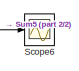
[diagram: root canvas - part 1/2, top center region]
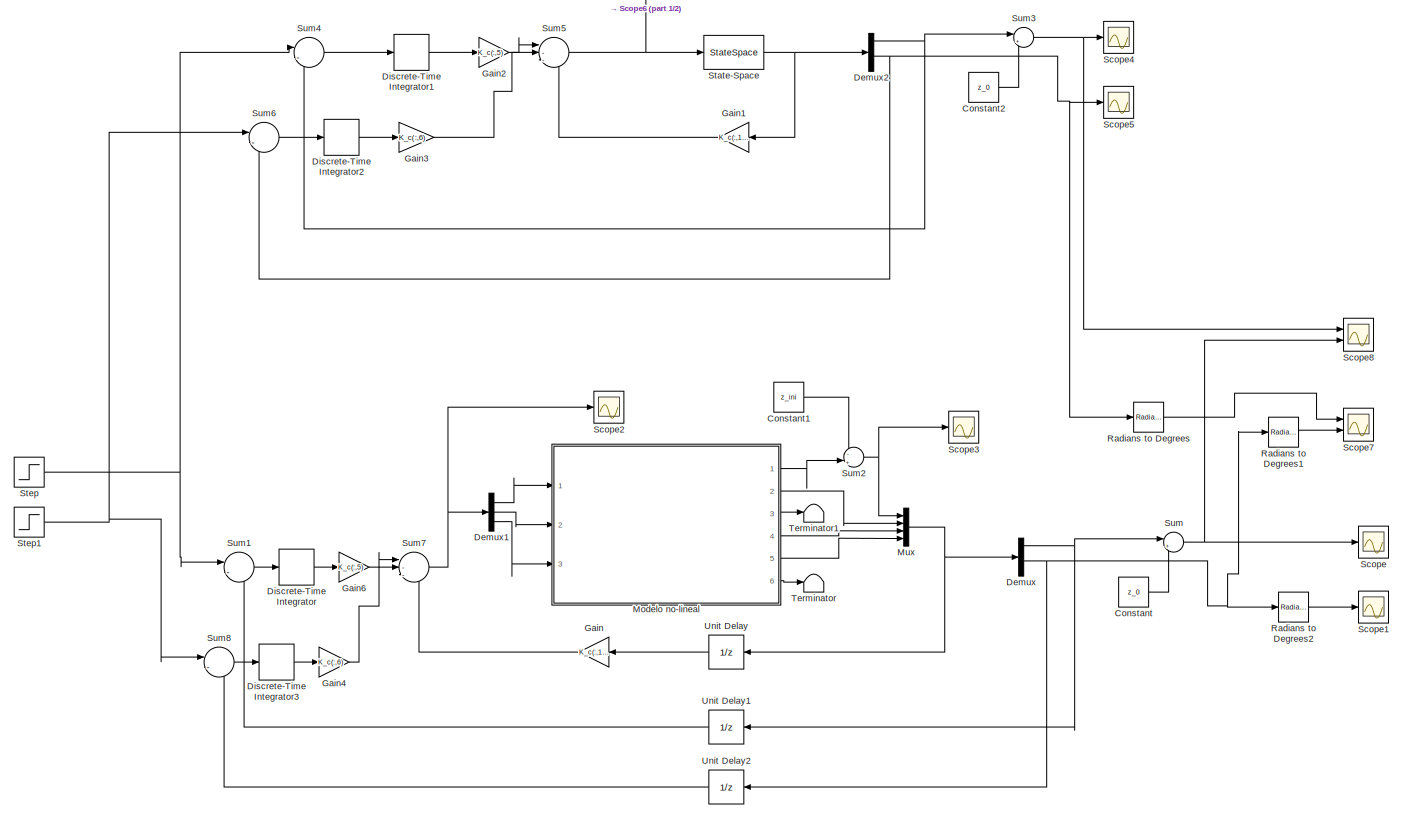
[diagram: root canvas - part 2/2, most of the canvas]
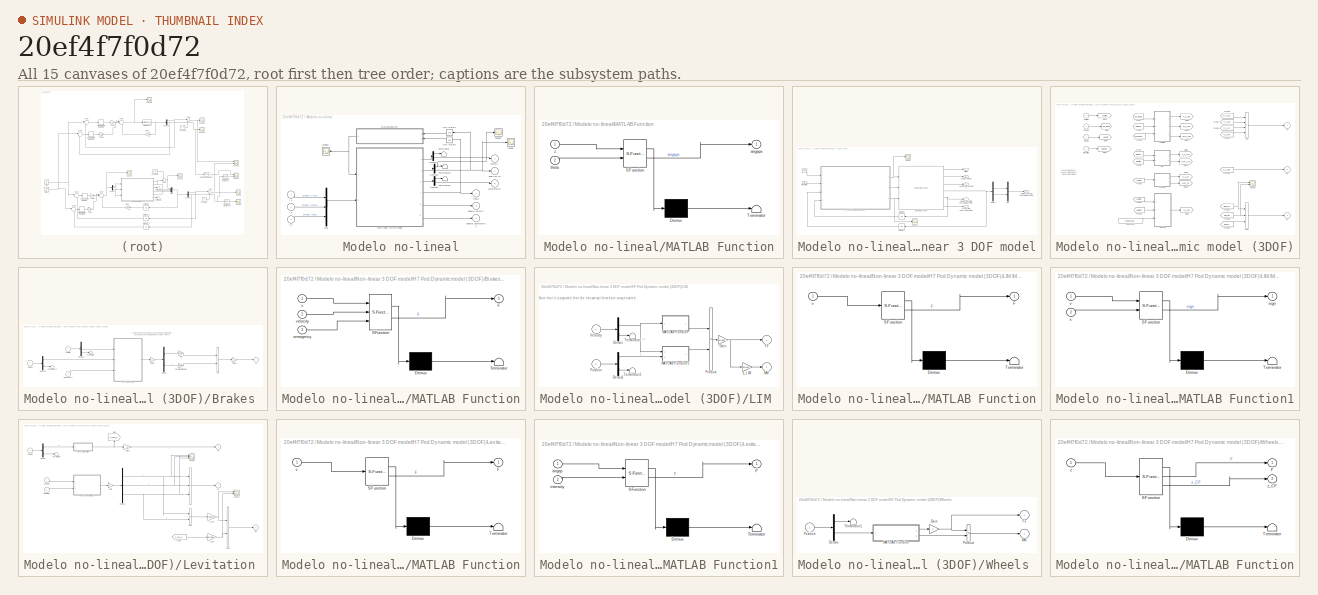
[diagram: thumbnail index - all 15 canvases of the model, root first then tree order]
MODEL slx_20ef4f7f0d72
KIND model
CONFIG AbsTol = auto
CONFIG EnableMultiTasking = off
CONFIG FixedStep = auto
CONFIG MaxStep = 1e-4
CONFIG MinStep = auto
CONFIG RelTol = 1e-9
CONFIG SampleTimeConstraint = Unconstrained
CONFIG Solver = ode45
CONFIG SolverName = ode45
CONFIG StartTime = 0.0
CONFIG StopTime = 10
BLOCK [Constant] Constant
  SampleTime = T
  Value = z_0
BLOCK [Constant] Constant1
  SampleTime = T
  Value = z_ini
BLOCK [Constant] Constant2
  Value = z_0
BLOCK [Demux] Demux
  Ports = [1, 4]
BLOCK [Demux] Demux1
  Outputs = 3
  Ports = [1, 3]
BLOCK [Demux] Demux2
  Ports = [1, 4]
BLOCK [DiscreteIntegrator] Discrete-Time Integrator
  ICPrevOutput = DiscIntNeverNeededParam
  ICPrevScaledInput = DiscIntNeverNeededParam
  InitialConditionSetting = Auto
  Ports = [1, 1]
  SampleTime = -1
BLOCK [DiscreteIntegrator] Discrete-Time Integrator1
  ICPrevOutput = DiscIntNeverNeededParam
  ICPrevScaledInput = DiscIntNeverNeededParam
  InitialConditionSetting = Auto
  Ports = [1, 1]
  SampleTime = -1
BLOCK [DiscreteIntegrator] Discrete-Time Integrator2
  ICPrevOutput = DiscIntNeverNeededParam
  ICPrevScaledInput = DiscIntNeverNeededParam
  InitialConditionSetting = Auto
  Ports = [1, 1]
  SampleTime = -1
BLOCK [DiscreteIntegrator] Discrete-Time Integrator3
  ICPrevOutput = DiscIntNeverNeededParam
  ICPrevScaledInput = DiscIntNeverNeededParam
  InitialConditionSetting = Auto
  Ports = [1, 1]
  SampleTime = -1
BLOCK [Gain] Gain
  Gain = K_c(:,1:4)
  Multiplication = Matrix(K*u)
BLOCK [Gain] Gain1
  Gain = K_c(:,1:4)
  Multiplication = Matrix(K*u)
BLOCK [Gain] Gain2
  Gain = K_c(:,5)
BLOCK [Gain] Gain3
  Gain = K_c(:,6)
BLOCK [Gain] Gain4
  Gain = K_c(:,6)
BLOCK [Gain] Gain6
  Gain = K_c(:,5)
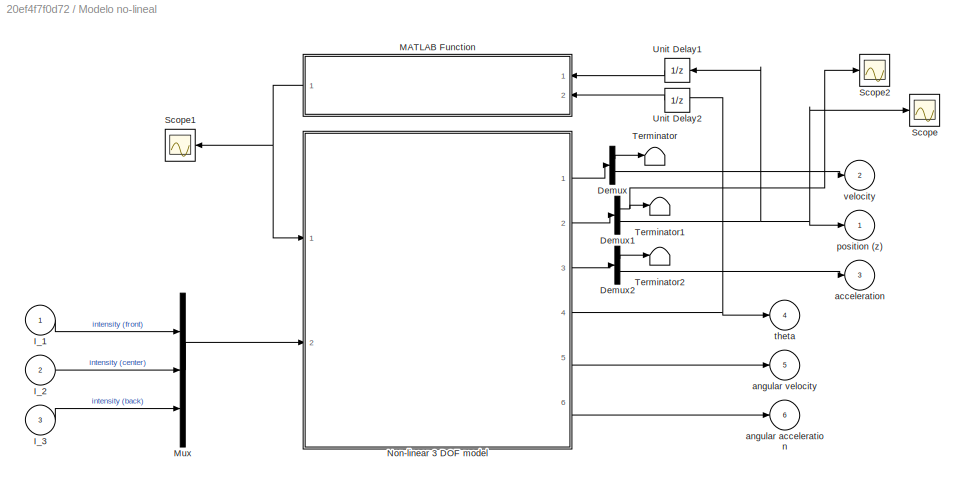
BLOCK [SubSystem] Modelo no-lineal
  Ports = [3, 6]
  RequestExecContextInheritance = off
BLOCK [Demux] Modelo no-lineal/Demux
  Outputs = 2
  Ports = [1, 2]
BLOCK [Demux] Modelo no-lineal/Demux1
  Outputs = 2
  Ports = [1, 2]
BLOCK [Demux] Modelo no-lineal/Demux2
  Outputs = 2
  Ports = [1, 2]
BLOCK [Inport] Modelo no-lineal/I_1
BLOCK [Inport] Modelo no-lineal/I_2
  Port = 2
BLOCK [Inport] Modelo no-lineal/I_3
  Port = 3
BLOCK [SubSystem] Modelo no-lineal/MATLAB Function
  ErrorFcn = Stateflow.Translate.translate
  PermitHierarchicalResolution = ExplicitOnly
  Ports = [2, 1]
  RequestExecContextInheritance = off
  SFBlockType = MATLAB Function
  TreatAsAtomicUnit = on
BLOCK [Demux] Modelo no-lineal/MATLAB Function/ Demux 
  Outputs = 1
  Ports = [1, 1]
BLOCK [S-Function] Modelo no-lineal/MATLAB Function/ SFunction 
  EnableBusSupport = on
  FunctionName = sf_sfun
  Parameters = pod
  PortCounts = [2 2]
  Ports = [2, 2]
  SFcnIsStateOwnerBlock = off
  SFunctionDeploymentMode = off
  Tag = Stateflow S-Function R19_Modelo_control_REAL_c_2GDL_2021 2
BLOCK [Terminator] Modelo no-lineal/MATLAB Function/ Terminator 
BLOCK [Outport] Modelo no-lineal/MATLAB Function/airgaps
BLOCK [Inport] Modelo no-lineal/MATLAB Function/theta
  Port = 2
BLOCK [Inport] Modelo no-lineal/MATLAB Function/z
BLOCK [Mux] Modelo no-lineal/Mux
  DisplayOption = bar
  Inputs = 3
  Ports = [3, 1]
BLOCK [SubSystem] Modelo no-lineal/Non-linear 3 DOF model
  AncestorBlock = libH7_3DOF/Non-linear 3 DOF model
  Ports = [2, 6]
  RequestExecContextInheritance = off
BLOCK [Reference] Modelo no-lineal/Non-linear 3 DOF model/3dof (Body Axes)  REF=shared3dof/3DOF (Body Axes)
  Ports = [3, 6]
  SourceBlock = shared3dof/3DOF (Body Axes)
  SourceProductBaseCode = AE,PW,DR,MT,UV,VE
  SourceType = 3DOF EoM
BLOCK [Outport] Modelo no-lineal/Non-linear 3 DOF model/Acceleration (body-fixed coordinate system)
  Port = 3
BLOCK [Inport] Modelo no-lineal/Non-linear 3 DOF model/Airgaps
BLOCK [Outport] Modelo no-lineal/Non-linear 3 DOF model/Angular acceleration
  Port = 6
BLOCK [Outport] Modelo no-lineal/Non-linear 3 DOF model/Angular velocity
  Port = 5
BLOCK [Outport] Modelo no-lineal/Non-linear 3 DOF model/Attitude 
  Port = 4
BLOCK [Demux] Modelo no-lineal/Non-linear 3 DOF model/Demux
  Outputs = 2
  Ports = [1, 2]
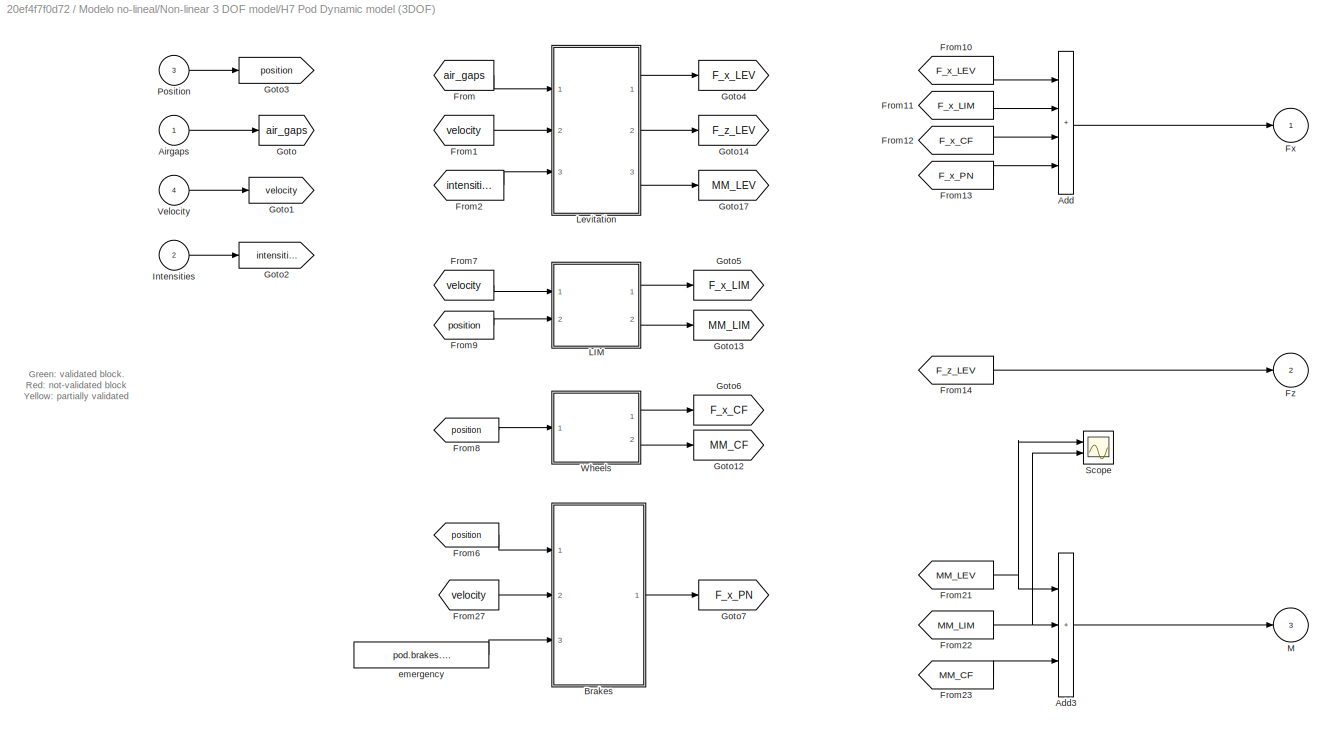
BLOCK [SubSystem] Modelo no-lineal/Non-linear 3 DOF model/H7 Pod Dynamic model (3DOF)
  AncestorBlock = libH7_3DOF/H7 Pod Dynamic model (3DOF)
  Ports = [4, 3]
  RequestExecContextInheritance = off
BLOCK [Sum] Modelo no-lineal/Non-linear 3 DOF model/H7 Pod Dynamic model (3DOF)/Add
  IconShape = rectangular
  Inputs = ++++
  Ports = [4, 1]
BLOCK [Sum] Modelo no-lineal/Non-linear 3 DOF model/H7 Pod Dynamic model (3DOF)/Add3
  IconShape = rectangular
  Inputs = +++
  Ports = [3, 1]
BLOCK [Inport] Modelo no-lineal/Non-linear 3 DOF model/H7 Pod Dynamic model (3DOF)/Airgaps
BLOCK [SubSystem] Modelo no-lineal/Non-linear 3 DOF model/H7 Pod Dynamic model (3DOF)/Brakes 
  AncestorBlock = libH7/H7 Pod Dynamic model/Brakes
  Ports = [3, 1]
  RequestExecContextInheritance = off
BLOCK [Sum] Modelo no-lineal/Non-linear 3 DOF model/H7 Pod Dynamic model (3DOF)/Brakes /Add
  IconShape = rectangular
  Ports = [2, 1]
BLOCK [Demux] Modelo no-lineal/Non-linear 3 DOF model/H7 Pod Dynamic model (3DOF)/Brakes /Demux
  Outputs = 2
  Ports = [1, 2]
BLOCK [Demux] Modelo no-lineal/Non-linear 3 DOF model/H7 Pod Dynamic model (3DOF)/Brakes /Demux2
  Outputs = 2
  Ports = [1, 2]
BLOCK [Demux] Modelo no-lineal/Non-linear 3 DOF model/H7 Pod Dynamic model (3DOF)/Brakes /Demux3
  Outputs = 2
  Ports = [1, 2]
BLOCK [Inport] Modelo no-lineal/Non-linear 3 DOF model/H7 Pod Dynamic model (3DOF)/Brakes /Emergency
  Port = 3
BLOCK [Gain] Modelo no-lineal/Non-linear 3 DOF model/H7 Pod Dynamic model (3DOF)/Brakes /Functionality gains
  Gain = pod.brakes.working_actuators(2)
BLOCK [Outport] Modelo no-lineal/Non-linear 3 DOF model/H7 Pod Dynamic model (3DOF)/Brakes /Fx
BLOCK [Gain] Modelo no-lineal/Non-linear 3 DOF model/H7 Pod Dynamic model (3DOF)/Brakes /Gain
  Gain = pod.brakes.working_actuators(1)
BLOCK [Gain] Modelo no-lineal/Non-linear 3 DOF model/H7 Pod Dynamic model (3DOF)/Brakes /Gain1
  Gain = -1
BLOCK [Gain] Modelo no-lineal/Non-linear 3 DOF model/H7 Pod Dynamic model (3DOF)/Brakes /Gain2
  Gain = 2
BLOCK [SubSystem] Modelo no-lineal/Non-linear 3 DOF model/H7 Pod Dynamic model (3DOF)/Brakes /MATLAB Function
  ErrorFcn = Stateflow.Translate.translate
  PermitHierarchicalResolution = ExplicitOnly
  Ports = [3, 1]
  RequestExecContextInheritance = off
  SFBlockType = MATLAB Function
  TreatAsAtomicUnit = on
BLOCK [Demux] Modelo no-lineal/Non-linear 3 DOF model/H7 Pod Dynamic model (3DOF)/Brakes /MATLAB Function/ Demux 
  Outputs = 1
  Ports = [1, 1]
BLOCK [S-Function] Modelo no-lineal/Non-linear 3 DOF model/H7 Pod Dynamic model (3DOF)/Brakes /MATLAB Function/ SFunction 
  EnableBusSupport = on
  FunctionName = sf_sfun
  Parameters = pod
  PortCounts = [3 2]
  Ports = [3, 2]
  SFcnIsStateOwnerBlock = off
  SFunctionDeploymentMode = off
  Tag = Stateflow S-Function R19_Modelo_control_REAL_c_2GDL_2021 16
BLOCK [Terminator] Modelo no-lineal/Non-linear 3 DOF model/H7 Pod Dynamic model (3DOF)/Brakes /MATLAB Function/ Terminator 
BLOCK [Outport] Modelo no-lineal/Non-linear 3 DOF model/H7 Pod Dynamic model (3DOF)/Brakes /MATLAB Function/F
BLOCK [Inport] Modelo no-lineal/Non-linear 3 DOF model/H7 Pod Dynamic model (3DOF)/Brakes /MATLAB Function/emergency
  Port = 3
BLOCK [Inport] Modelo no-lineal/Non-linear 3 DOF model/H7 Pod Dynamic model (3DOF)/Brakes /MATLAB Function/velocity
  Port = 2
BLOCK [Inport] Modelo no-lineal/Non-linear 3 DOF model/H7 Pod Dynamic model (3DOF)/Brakes /MATLAB Function/x
BLOCK [Inport] Modelo no-lineal/Non-linear 3 DOF model/H7 Pod Dynamic model (3DOF)/Brakes /Position
BLOCK [Terminator] Modelo no-lineal/Non-linear 3 DOF model/H7 Pod Dynamic model (3DOF)/Brakes /Terminator
BLOCK [Terminator] Modelo no-lineal/Non-linear 3 DOF model/H7 Pod Dynamic model (3DOF)/Brakes /Terminator2
BLOCK [Inport] Modelo no-lineal/Non-linear 3 DOF model/H7 Pod Dynamic model (3DOF)/Brakes /velocity
  Port = 2
BLOCK [From] Modelo no-lineal/Non-linear 3 DOF model/H7 Pod Dynamic model (3DOF)/From
  GotoTag = air_gaps
BLOCK [From] Modelo no-lineal/Non-linear 3 DOF model/H7 Pod Dynamic model (3DOF)/From1
  GotoTag = velocity
BLOCK [From] Modelo no-lineal/Non-linear 3 DOF model/H7 Pod Dynamic model (3DOF)/From10
  GotoTag = F_x_LEV
BLOCK [From] Modelo no-lineal/Non-linear 3 DOF model/H7 Pod Dynamic model (3DOF)/From11
  GotoTag = F_x_LIM
BLOCK [From] Modelo no-lineal/Non-linear 3 DOF model/H7 Pod Dynamic model (3DOF)/From12
  Commented = on
  GotoTag = F_x_CF
BLOCK [From] Modelo no-lineal/Non-linear 3 DOF model/H7 Pod Dynamic model (3DOF)/From13
  GotoTag = F_x_PN
BLOCK [From] Modelo no-lineal/Non-linear 3 DOF model/H7 Pod Dynamic model (3DOF)/From14
  GotoTag = F_z_LEV
BLOCK [From] Modelo no-lineal/Non-linear 3 DOF model/H7 Pod Dynamic model (3DOF)/From2
  GotoTag = intensities
BLOCK [From] Modelo no-lineal/Non-linear 3 DOF model/H7 Pod Dynamic model (3DOF)/From21
  GotoTag = MM_LEV
BLOCK [From] Modelo no-lineal/Non-linear 3 DOF model/H7 Pod Dynamic model (3DOF)/From22
  GotoTag = MM_LIM
BLOCK [From] Modelo no-lineal/Non-linear 3 DOF model/H7 Pod Dynamic model (3DOF)/From23
  Commented = on
  GotoTag = MM_CF
BLOCK [From] Modelo no-lineal/Non-linear 3 DOF model/H7 Pod Dynamic model (3DOF)/From27
  GotoTag = velocity
BLOCK [From] Modelo no-lineal/Non-linear 3 DOF model/H7 Pod Dynamic model (3DOF)/From6
  GotoTag = position
BLOCK [From] Modelo no-lineal/Non-linear 3 DOF model/H7 Pod Dynamic model (3DOF)/From7
  GotoTag = velocity
BLOCK [From] Modelo no-lineal/Non-linear 3 DOF model/H7 Pod Dynamic model (3DOF)/From8
  Commented = on
  GotoTag = position
BLOCK [From] Modelo no-lineal/Non-linear 3 DOF model/H7 Pod Dynamic model (3DOF)/From9
  GotoTag = position
BLOCK [Outport] Modelo no-lineal/Non-linear 3 DOF model/H7 Pod Dynamic model (3DOF)/Fx
BLOCK [Outport] Modelo no-lineal/Non-linear 3 DOF model/H7 Pod Dynamic model (3DOF)/Fz
  Port = 2
BLOCK [Goto] Modelo no-lineal/Non-linear 3 DOF model/H7 Pod Dynamic model (3DOF)/Goto
  GotoTag = air_gaps
BLOCK [Goto] Modelo no-lineal/Non-linear 3 DOF model/H7 Pod Dynamic model (3DOF)/Goto1
  GotoTag = velocity
BLOCK [Goto] Modelo no-lineal/Non-linear 3 DOF model/H7 Pod Dynamic model (3DOF)/Goto12
  Commented = on
  GotoTag = MM_CF
BLOCK [Goto] Modelo no-lineal/Non-linear 3 DOF model/H7 Pod Dynamic model (3DOF)/Goto13
  GotoTag = MM_LIM
BLOCK [Goto] Modelo no-lineal/Non-linear 3 DOF model/H7 Pod Dynamic model (3DOF)/Goto14
  GotoTag = F_z_LEV
BLOCK [Goto] Modelo no-lineal/Non-linear 3 DOF model/H7 Pod Dynamic model (3DOF)/Goto17
  GotoTag = MM_LEV
BLOCK [Goto] Modelo no-lineal/Non-linear 3 DOF model/H7 Pod Dynamic model (3DOF)/Goto2
  GotoTag = intensities
BLOCK [Goto] Modelo no-lineal/Non-linear 3 DOF model/H7 Pod Dynamic model (3DOF)/Goto3
  GotoTag = position
BLOCK [Goto] Modelo no-lineal/Non-linear 3 DOF model/H7 Pod Dynamic model (3DOF)/Goto4
  GotoTag = F_x_LEV
BLOCK [Goto] Modelo no-lineal/Non-linear 3 DOF model/H7 Pod Dynamic model (3DOF)/Goto5
  GotoTag = F_x_LIM
BLOCK [Goto] Modelo no-lineal/Non-linear 3 DOF model/H7 Pod Dynamic model (3DOF)/Goto6
  Commented = on
  GotoTag = F_x_CF
BLOCK [Goto] Modelo no-lineal/Non-linear 3 DOF model/H7 Pod Dynamic model (3DOF)/Goto7
  GotoTag = F_x_PN
BLOCK [Inport] Modelo no-lineal/Non-linear 3 DOF model/H7 Pod Dynamic model (3DOF)/Intensities
  Port = 2
BLOCK [SubSystem] Modelo no-lineal/Non-linear 3 DOF model/H7 Pod Dynamic model (3DOF)/LIM 
  AncestorBlock = libH7/H7 Pod Dynamic model/LIM
  Ports = [2, 2]
  RequestExecContextInheritance = off
BLOCK [Demux] Modelo no-lineal/Non-linear 3 DOF model/H7 Pod Dynamic model (3DOF)/LIM /Demux
  Outputs = 2
  Ports = [1, 2]
BLOCK [Demux] Modelo no-lineal/Non-linear 3 DOF model/H7 Pod Dynamic model (3DOF)/LIM /Demux1
  Outputs = 2
  Ports = [1, 2]
BLOCK [Outport] Modelo no-lineal/Non-linear 3 DOF model/H7 Pod Dynamic model (3DOF)/LIM /Fx
BLOCK [Gain] Modelo no-lineal/Non-linear 3 DOF model/H7 Pod Dynamic model (3DOF)/LIM /Gain
  Gain = pod.general.propulsion_on
BLOCK [SubSystem] Modelo no-lineal/Non-linear 3 DOF model/H7 Pod Dynamic model (3DOF)/LIM /MATLAB Function
  ErrorFcn = Stateflow.Translate.translate
  PermitHierarchicalResolution = ExplicitOnly
  Ports = [1, 1]
  RequestExecContextInheritance = off
  SFBlockType = MATLAB Function
  TreatAsAtomicUnit = on
BLOCK [Demux] Modelo no-lineal/Non-linear 3 DOF model/H7 Pod Dynamic model (3DOF)/LIM /MATLAB Function/ Demux 
  Outputs = 1
  Ports = [1, 1]
BLOCK [S-Function] Modelo no-lineal/Non-linear 3 DOF model/H7 Pod Dynamic model (3DOF)/LIM /MATLAB Function/ SFunction 
  EnableBusSupport = on
  FunctionName = sf_sfun
  Parameters = pod
  PortCounts = [1 2]
  Ports = [1, 2]
  SFcnIsStateOwnerBlock = off
  SFunctionDeploymentMode = off
  Tag = Stateflow S-Function R19_Modelo_control_REAL_c_2GDL_2021 17
BLOCK [Terminator] Modelo no-lineal/Non-linear 3 DOF model/H7 Pod Dynamic model (3DOF)/LIM /MATLAB Function/ Terminator 
BLOCK [Outport] Modelo no-lineal/Non-linear 3 DOF model/H7 Pod Dynamic model (3DOF)/LIM /MATLAB Function/F
BLOCK [Inport] Modelo no-lineal/Non-linear 3 DOF model/H7 Pod Dynamic model (3DOF)/LIM /MATLAB Function/v
BLOCK [SubSystem] Modelo no-lineal/Non-linear 3 DOF model/H7 Pod Dynamic model (3DOF)/LIM /MATLAB Function1
  ErrorFcn = Stateflow.Translate.translate
  PermitHierarchicalResolution = ExplicitOnly
  Ports = [2, 1]
  RequestExecContextInheritance = off
  SFBlockType = MATLAB Function
  TreatAsAtomicUnit = on
BLOCK [Demux] Modelo no-lineal/Non-linear 3 DOF model/H7 Pod Dynamic model (3DOF)/LIM /MATLAB Function1/ Demux 
  Outputs = 1
  Ports = [1, 1]
BLOCK [S-Function] Modelo no-lineal/Non-linear 3 DOF model/H7 Pod Dynamic model (3DOF)/LIM /MATLAB Function1/ SFunction 
  EnableBusSupport = on
  FunctionName = sf_sfun
  Parameters = pod
  PortCounts = [2 2]
  Ports = [2, 2]
  SFcnIsStateOwnerBlock = off
  SFunctionDeploymentMode = off
  Tag = Stateflow S-Function R19_Modelo_control_REAL_c_2GDL_2021 18
BLOCK [Terminator] Modelo no-lineal/Non-linear 3 DOF model/H7 Pod Dynamic model (3DOF)/LIM /MATLAB Function1/ Terminator 
BLOCK [Outport] Modelo no-lineal/Non-linear 3 DOF model/H7 Pod Dynamic model (3DOF)/LIM /MATLAB Function1/sign
BLOCK [Inport] Modelo no-lineal/Non-linear 3 DOF model/H7 Pod Dynamic model (3DOF)/LIM /MATLAB Function1/v
BLOCK [Inport] Modelo no-lineal/Non-linear 3 DOF model/H7 Pod Dynamic model (3DOF)/LIM /MATLAB Function1/x
  Port = 2
BLOCK [Outport] Modelo no-lineal/Non-linear 3 DOF model/H7 Pod Dynamic model (3DOF)/LIM /MM
  Port = 2
BLOCK [Inport] Modelo no-lineal/Non-linear 3 DOF model/H7 Pod Dynamic model (3DOF)/LIM /Position
  Port = 2
BLOCK [Product] Modelo no-lineal/Non-linear 3 DOF model/H7 Pod Dynamic model (3DOF)/LIM /Product
  Ports = [2, 1]
BLOCK [Terminator] Modelo no-lineal/Non-linear 3 DOF model/H7 Pod Dynamic model (3DOF)/LIM /Terminator
BLOCK [Terminator] Modelo no-lineal/Non-linear 3 DOF model/H7 Pod Dynamic model (3DOF)/LIM /Terminator2
BLOCK [Inport] Modelo no-lineal/Non-linear 3 DOF model/H7 Pod Dynamic model (3DOF)/LIM /Velocity
BLOCK [Gain] Modelo no-lineal/Non-linear 3 DOF model/H7 Pod Dynamic model (3DOF)/LIM /z_LIM
  Gain = pod.geometry.z_LIM
BLOCK [SubSystem] Modelo no-lineal/Non-linear 3 DOF model/H7 Pod Dynamic model (3DOF)/Levitation 
  AncestorBlock = libH7/H7 Pod Dynamic model/Levitation
  Ports = [3, 3]
  RequestExecContextInheritance = off
BLOCK [Sum] Modelo no-lineal/Non-linear 3 DOF model/H7 Pod Dynamic model (3DOF)/Levitation /Add
  IconShape = rectangular
  Inputs = +++
  Ports = [3, 1]
BLOCK [Sum] Modelo no-lineal/Non-linear 3 DOF model/H7 Pod Dynamic model (3DOF)/Levitation /Add1
  IconShape = rectangular
  Inputs = +-
  Ports = [2, 1]
BLOCK [Sum] Modelo no-lineal/Non-linear 3 DOF model/H7 Pod Dynamic model (3DOF)/Levitation /Add2
  IconShape = rectangular
  Ports = [2, 1]
BLOCK [Inport] Modelo no-lineal/Non-linear 3 DOF model/H7 Pod Dynamic model (3DOF)/Levitation /Airgaps
BLOCK [Demux] Modelo no-lineal/Non-linear 3 DOF model/H7 Pod Dynamic model (3DOF)/Levitation /Demux
  Outputs = 2
  Ports = [1, 2]
BLOCK [Demux] Modelo no-lineal/Non-linear 3 DOF model/H7 Pod Dynamic model (3DOF)/Levitation /Demux1
  Outputs = 3
  Ports = [1, 3]
BLOCK [From] Modelo no-lineal/Non-linear 3 DOF model/H7 Pod Dynamic model (3DOF)/Levitation /From
  GotoTag = F_LEV_X
BLOCK [Outport] Modelo no-lineal/Non-linear 3 DOF model/H7 Pod Dynamic model (3DOF)/Levitation /Fx
BLOCK [Outport] Modelo no-lineal/Non-linear 3 DOF model/H7 Pod Dynamic model (3DOF)/Levitation /Fz
  Port = 2
BLOCK [Gain] Modelo no-lineal/Non-linear 3 DOF model/H7 Pod Dynamic model (3DOF)/Levitation /Gain
  Gain = -2
BLOCK [Gain] Modelo no-lineal/Non-linear 3 DOF model/H7 Pod Dynamic model (3DOF)/Levitation /Gain1
  Gain = -6
BLOCK [Goto] Modelo no-lineal/Non-linear 3 DOF model/H7 Pod Dynamic model (3DOF)/Levitation /Goto
  GotoTag = F_LEV_X
BLOCK [Inport] Modelo no-lineal/Non-linear 3 DOF model/H7 Pod Dynamic model (3DOF)/Levitation /Intensities
  Port = 3
BLOCK [SubSystem] Modelo no-lineal/Non-linear 3 DOF model/H7 Pod Dynamic model (3DOF)/Levitation /MATLAB Function
  ErrorFcn = Stateflow.Translate.translate
  PermitHierarchicalResolution = ExplicitOnly
  Ports = [1, 1]
  RequestExecContextInheritance = off
  SFBlockType = MATLAB Function
  TreatAsAtomicUnit = on
BLOCK [Demux] Modelo no-lineal/Non-linear 3 DOF model/H7 Pod Dynamic model (3DOF)/Levitation /MATLAB Function/ Demux 
  Outputs = 1
  Ports = [1, 1]
BLOCK [S-Function] Modelo no-lineal/Non-linear 3 DOF model/H7 Pod Dynamic model (3DOF)/Levitation /MATLAB Function/ SFunction 
  EnableBusSupport = on
  FunctionName = sf_sfun
  Parameters = pod
  PortCounts = [1 2]
  Ports = [1, 2]
  SFcnIsStateOwnerBlock = off
  SFunctionDeploymentMode = off
  Tag = Stateflow S-Function R19_Modelo_control_REAL_c_2GDL_2021 19
BLOCK [Terminator] Modelo no-lineal/Non-linear 3 DOF model/H7 Pod Dynamic model (3DOF)/Levitation /MATLAB Function/ Terminator 
BLOCK [Outport] Modelo no-lineal/Non-linear 3 DOF model/H7 Pod Dynamic model (3DOF)/Levitation /MATLAB Function/F
BLOCK [Inport] Modelo no-lineal/Non-linear 3 DOF model/H7 Pod Dynamic model (3DOF)/Levitation /MATLAB Function/v
BLOCK [SubSystem] Modelo no-lineal/Non-linear 3 DOF model/H7 Pod Dynamic model (3DOF)/Levitation /MATLAB Function1
  ErrorFcn = Stateflow.Translate.translate
  PermitHierarchicalResolution = ExplicitOnly
  Ports = [2, 1]
  RequestExecContextInheritance = off
  SFBlockType = MATLAB Function
  TreatAsAtomicUnit = on
BLOCK [Demux] Modelo no-lineal/Non-linear 3 DOF model/H7 Pod Dynamic model (3DOF)/Levitation /MATLAB Function1/ Demux 
  Outputs = 1
  Ports = [1, 1]
BLOCK [S-Function] Modelo no-lineal/Non-linear 3 DOF model/H7 Pod Dynamic model (3DOF)/Levitation /MATLAB Function1/ SFunction 
  EnableBusSupport = on
  FunctionName = sf_sfun
  Parameters = pod
  PortCounts = [2 2]
  Ports = [2, 2]
  SFcnIsStateOwnerBlock = off
  SFunctionDeploymentMode = off
  Tag = Stateflow S-Function R19_Modelo_control_REAL_c_2GDL_2021 20
BLOCK [Terminator] Modelo no-lineal/Non-linear 3 DOF model/H7 Pod Dynamic model (3DOF)/Levitation /MATLAB Function1/ Terminator 
BLOCK [Outport] Modelo no-lineal/Non-linear 3 DOF model/H7 Pod Dynamic model (3DOF)/Levitation /MATLAB Function1/F
BLOCK [Inport] Modelo no-lineal/Non-linear 3 DOF model/H7 Pod Dynamic model (3DOF)/Levitation /MATLAB Function1/airgap
BLOCK [Inport] Modelo no-lineal/Non-linear 3 DOF model/H7 Pod Dynamic model (3DOF)/Levitation /MATLAB Function1/intensity
  Port = 2
BLOCK [Outport] Modelo no-lineal/Non-linear 3 DOF model/H7 Pod Dynamic model (3DOF)/Levitation /MM
  Port = 3
BLOCK [Scope] Modelo no-lineal/Non-linear 3 DOF model/H7 Pod Dynamic model (3DOF)/Levitation /Scope
  Floating = off
  NumInputPorts = 3
  Ports = [3]
  ScopeSpecificationString = Simulink.scopes.TimeScopeBlockCfg('CurrentConfiguration', extmgr.ConfigurationSet(extmgr.Configuration('Core','General UI',true),extmgr.Configuration('Core','Source UI',true),extmgr.Configuration('Sources','WiredSimulink',true,'DataLoggingVariableName','ScopeData5'),extmgr.Configuration('Visuals','Time Domain',true,'SerializedDisplays',{struct('MinYLimReal','-471.69026','MaxYLimReal','-307.54503',...<+1409ch>
BLOCK [Scope] Modelo no-lineal/Non-linear 3 DOF model/H7 Pod Dynamic model (3DOF)/Levitation /Scope1
  Floating = off
  NumInputPorts = 2
  Ports = [2]
  ScopeSpecificationString = Simulink.scopes.TimeScopeBlockCfg('CurrentConfiguration', extmgr.ConfigurationSet(extmgr.Configuration('Core','General UI',true),extmgr.Configuration('Core','Source UI',true),extmgr.Configuration('Sources','WiredSimulink',true,'DataLoggingVariableName','ScopeData6'),extmgr.Configuration('Visuals','Time Domain',true),extmgr.Configuration('Tools','Plot Navigation',true),extmgr.Configuration('Tools',...<+40ch>
BLOCK [Terminator] Modelo no-lineal/Non-linear 3 DOF model/H7 Pod Dynamic model (3DOF)/Levitation /Terminator
BLOCK [Inport] Modelo no-lineal/Non-linear 3 DOF model/H7 Pod Dynamic model (3DOF)/Levitation /Velocity
  Port = 2
BLOCK [Gain] Modelo no-lineal/Non-linear 3 DOF model/H7 Pod Dynamic model (3DOF)/Levitation /x_LEV
  Gain = - pod.geometry.x_LEV
BLOCK [Gain] Modelo no-lineal/Non-linear 3 DOF model/H7 Pod Dynamic model (3DOF)/Levitation /z_LEV
  Gain = pod.geometry.z_LEV
BLOCK [Outport] Modelo no-lineal/Non-linear 3 DOF model/H7 Pod Dynamic model (3DOF)/M
  Port = 3
BLOCK [Inport] Modelo no-lineal/Non-linear 3 DOF model/H7 Pod Dynamic model (3DOF)/Position
  Port = 3
BLOCK [Scope] Modelo no-lineal/Non-linear 3 DOF model/H7 Pod Dynamic model (3DOF)/Scope
  Floating = off
  NumInputPorts = 2
  Ports = [2]
  ScopeSpecificationString = Simulink.scopes.TimeScopeBlockCfg('CurrentConfiguration', extmgr.ConfigurationSet(extmgr.Configuration('Core','General UI',true),extmgr.Configuration('Core','Source UI',true),extmgr.Configuration('Sources','WiredSimulink',true,'DataLoggingVariableName','ScopeData3'),extmgr.Configuration('Visuals','Time Domain',true,'SerializedDisplays',{struct('MinYLimReal','-123.89624','MaxYLimReal','126.38718','...<+1466ch>
BLOCK [Inport] Modelo no-lineal/Non-linear 3 DOF model/H7 Pod Dynamic model (3DOF)/Velocity
  Port = 4
BLOCK [SubSystem] Modelo no-lineal/Non-linear 3 DOF model/H7 Pod Dynamic model (3DOF)/Wheels 
  AncestorBlock = libH7/H7 Pod Dynamic model/Wheels
  Commented = on
  Ports = [1, 2]
  RequestExecContextInheritance = off
BLOCK [Demux] Modelo no-lineal/Non-linear 3 DOF model/H7 Pod Dynamic model (3DOF)/Wheels /Demux
  Outputs = 2
  Ports = [1, 2]
BLOCK [Outport] Modelo no-lineal/Non-linear 3 DOF model/H7 Pod Dynamic model (3DOF)/Wheels /Fx
BLOCK [Gain] Modelo no-lineal/Non-linear 3 DOF model/H7 Pod Dynamic model (3DOF)/Wheels /Gain
  Gain = 2
BLOCK [SubSystem] Modelo no-lineal/Non-linear 3 DOF model/H7 Pod Dynamic model (3DOF)/Wheels /MATLAB Function
  ErrorFcn = Stateflow.Translate.translate
  PermitHierarchicalResolution = ExplicitOnly
  Ports = [1, 2]
  RequestExecContextInheritance = off
  SFBlockType = MATLAB Function
  TreatAsAtomicUnit = on
BLOCK [Demux] Modelo no-lineal/Non-linear 3 DOF model/H7 Pod Dynamic model (3DOF)/Wheels /MATLAB Function/ Demux 
  Outputs = 1
  Ports = [1, 1]
BLOCK [S-Function] Modelo no-lineal/Non-linear 3 DOF model/H7 Pod Dynamic model (3DOF)/Wheels /MATLAB Function/ SFunction 
  EnableBusSupport = on
  FunctionName = sf_sfun
  Parameters = pod
  PortCounts = [1 3]
  Ports = [1, 3]
  SFcnIsStateOwnerBlock = off
  SFunctionDeploymentMode = off
  Tag = Stateflow S-Function 21
BLOCK [Terminator] Modelo no-lineal/Non-linear 3 DOF model/H7 Pod Dynamic model (3DOF)/Wheels /MATLAB Function/ Terminator 
BLOCK [Outport] Modelo no-lineal/Non-linear 3 DOF model/H7 Pod Dynamic model (3DOF)/Wheels /MATLAB Function/F
BLOCK [Inport] Modelo no-lineal/Non-linear 3 DOF model/H7 Pod Dynamic model (3DOF)/Wheels /MATLAB Function/z
BLOCK [Outport] Modelo no-lineal/Non-linear 3 DOF model/H7 Pod Dynamic model (3DOF)/Wheels /MATLAB Function/z_CF
  Port = 2
BLOCK [Outport] Modelo no-lineal/Non-linear 3 DOF model/H7 Pod Dynamic model (3DOF)/Wheels /MM
  Port = 2
BLOCK [Inport] Modelo no-lineal/Non-linear 3 DOF model/H7 Pod Dynamic model (3DOF)/Wheels /Position
BLOCK [Product] Modelo no-lineal/Non-linear 3 DOF model/H7 Pod Dynamic model (3DOF)/Wheels /Product
  Ports = [2, 1]
BLOCK [Terminator] Modelo no-lineal/Non-linear 3 DOF model/H7 Pod Dynamic model (3DOF)/Wheels /Terminator1
BLOCK [Constant] Modelo no-lineal/Non-linear 3 DOF model/H7 Pod Dynamic model (3DOF)/emergency
  Value = pod.brakes.emergency_flag
BLOCK [Inport] Modelo no-lineal/Non-linear 3 DOF model/Intensities
  Port = 2
BLOCK [Mux] Modelo no-lineal/Non-linear 3 DOF model/Mux
  DisplayOption = bar
  Inputs = 2
  Ports = [2, 1]
BLOCK [Outport] Modelo no-lineal/Non-linear 3 DOF model/Position (absolute coordinate system)
  Port = 2
BLOCK [Scope] Modelo no-lineal/Non-linear 3 DOF model/Scope
  Floating = off
  NumInputPorts = 1
  Ports = [1]
  ScopeSpecificationString = Simulink.scopes.TimeScopeBlockCfg('CurrentConfiguration', extmgr.ConfigurationSet(extmgr.Configuration('Core','General UI',true),extmgr.Configuration('Core','Source UI',true),extmgr.Configuration('Sources','WiredSimulink',true,'DataLoggingVariableName','ScopeData3'),extmgr.Configuration('Visuals','Time Domain',true,'SerializedDisplays',{struct('MinYLimReal','-314.7799','MaxYLimReal','293.64221','Y...<+1452ch>
BLOCK [Scope] Modelo no-lineal/Non-linear 3 DOF model/Scope1
  Floating = off
  NumInputPorts = 1
  Ports = [1]
  ScopeSpecificationString = Simulink.scopes.TimeScopeBlockCfg('CurrentConfiguration', extmgr.ConfigurationSet(extmgr.Configuration('Core','General UI',true),extmgr.Configuration('Core','Source UI',true),extmgr.Configuration('Sources','WiredSimulink',true,'DataLoggingVariableName','ScopeData2'),extmgr.Configuration('Visuals','Time Domain',true,'SerializedDisplays',{struct('MinYLimReal','-109.63522','MaxYLimReal','79.9544','YL...<+1452ch>
BLOCK [UnitDelay] Modelo no-lineal/Non-linear 3 DOF model/Unit Delay
  HasFrameUpgradeWarning = on
  InitialCondition = [0,0]
  SampleTime = -1
BLOCK [UnitDelay] Modelo no-lineal/Non-linear 3 DOF model/Unit Delay1
  HasFrameUpgradeWarning = on
  InitialCondition = initial_conds.x_0(1:2:3)
  SampleTime = -1
BLOCK [Outport] Modelo no-lineal/Non-linear 3 DOF model/Velocity (absolute coordinate system)
BLOCK [Scope] Modelo no-lineal/Scope
  Floating = off
  NumInputPorts = 1
  Ports = [1]
  ScopeSpecificationString = Simulink.scopes.TimeScopeBlockCfg('CurrentConfiguration', extmgr.ConfigurationSet(extmgr.Configuration('Core','General UI',true),extmgr.Configuration('Core','Source UI',true),extmgr.Configuration('Sources','WiredSimulink',true,'DataLoggingVariableName','ScopeData1'),extmgr.Configuration('Visuals','Time Domain',true,'SerializedDisplays',{struct('MinYLimReal','-58.09573','MaxYLimReal','526.30347','Y...<+1402ch>
BLOCK [Scope] Modelo no-lineal/Scope1
  Floating = off
  NumInputPorts = 1
  Ports = [1]
  ScopeSpecificationString = Simulink.scopes.TimeScopeBlockCfg('CurrentConfiguration', extmgr.ConfigurationSet(extmgr.Configuration('Core','General UI',true),extmgr.Configuration('Core','Source UI',true),extmgr.Configuration('Sources','WiredSimulink',true,'DataLoggingVariableName','ScopeData2'),extmgr.Configuration('Visuals','Time Domain',true,'SerializedDisplays',{struct('MinYLimReal','17.32852','MaxYLimReal','19.11904','YLa...<+1449ch>
BLOCK [Scope] Modelo no-lineal/Scope2
  Floating = off
  NumInputPorts = 1
  Ports = [1]
  ScopeSpecificationString = Simulink.scopes.TimeScopeBlockCfg('CurrentConfiguration', extmgr.ConfigurationSet(extmgr.Configuration('Core','General UI',true),extmgr.Configuration('Core','Source UI',true),extmgr.Configuration('Sources','WiredSimulink',true,'DataLoggingVariableName','ScopeData1'),extmgr.Configuration('Visuals','Time Domain',true,'SerializedDisplays',{struct('MinYLimReal','-2.81432','MaxYLimReal','25.32885','YLa...<+1425ch>
BLOCK [Terminator] Modelo no-lineal/Terminator
BLOCK [Terminator] Modelo no-lineal/Terminator1
BLOCK [Terminator] Modelo no-lineal/Terminator2
BLOCK [UnitDelay] Modelo no-lineal/Unit Delay1
  HasFrameUpgradeWarning = on
  InitialCondition = initial_conds.x_0(3)
  SampleTime = -1
BLOCK [UnitDelay] Modelo no-lineal/Unit Delay2
  HasFrameUpgradeWarning = on
  SampleTime = -1
BLOCK [Outport] Modelo no-lineal/acceleration
  Port = 3
BLOCK [Outport] Modelo no-lineal/angular acceleration
  Port = 6
BLOCK [Outport] Modelo no-lineal/angular velocity
  Port = 5
BLOCK [Outport] Modelo no-lineal/position (z)
BLOCK [Outport] Modelo no-lineal/theta
  Port = 4
BLOCK [Outport] Modelo no-lineal/velocity
  Port = 2
BLOCK [Mux] Mux
  DisplayOption = bar
  Ports = [4, 1]
BLOCK [Reference] Radians to Degrees  REF=simulink_extras/Transformations/Radians
to Degrees
  Ports = [1, 1]
  SourceBlock = simulink_extras/Transformations/Radians\nto Degrees
  SourceProductBaseCode = SL
  SourceType = RadiansToDegrees
BLOCK [Reference] Radians to Degrees1  REF=simulink_extras/Transformations/Radians
to Degrees
  Ports = [1, 1]
  SourceBlock = simulink_extras/Transformations/Radians\nto Degrees
  SourceProductBaseCode = SL
  SourceType = RadiansToDegrees
BLOCK [Reference] Radians to Degrees2  REF=simulink_extras/Transformations/Radians
to Degrees
  Ports = [1, 1]
  SourceBlock = simulink_extras/Transformations/Radians\nto Degrees
  SourceProductBaseCode = SL
  SourceType = RadiansToDegrees
BLOCK [Scope] Scope
  Floating = off
  NumInputPorts = 1
  Ports = [1]
  ScopeSpecificationString = Simulink.scopes.TimeScopeBlockCfg('CurrentConfiguration', extmgr.ConfigurationSet(extmgr.Configuration('Core','General UI',true),extmgr.Configuration('Core','Source UI',true),extmgr.Configuration('Sources','WiredSimulink',true),extmgr.Configuration('Visuals','Time Domain',true,'SerializedDisplays',{struct('MinYLimReal','0.01788','MaxYLimReal','0.01912','YLabelReal','','MinYLimMag','0.01788','MaxYL...<+1375ch>
BLOCK [Scope] Scope1
  Floating = off
  NumInputPorts = 1
  Ports = [1]
  ScopeSpecificationString = Simulink.scopes.TimeScopeBlockCfg('CurrentConfiguration', extmgr.ConfigurationSet(extmgr.Configuration('Core','General UI',true),extmgr.Configuration('Core','Source UI',true),extmgr.Configuration('Sources','WiredSimulink',true,'DataLoggingVariableName','ScopeData1'),extmgr.Configuration('Visuals','Time Domain',true,'SerializedDisplays',{struct('MinYLimReal','-0.04447','MaxYLimReal','0.03254','YLab...<+1432ch>
BLOCK [Scope] Scope2
  Floating = off
  NumInputPorts = 1
  Ports = [1]
  ScopeSpecificationString = Simulink.scopes.TimeScopeBlockCfg('CurrentConfiguration', extmgr.ConfigurationSet(extmgr.Configuration('Core','General UI',true),extmgr.Configuration('Core','Source UI',true),extmgr.Configuration('Sources','WiredSimulink',true,'DataLoggingVariableName','ScopeData2'),extmgr.Configuration('Visuals','Time Domain',true,'SerializedDisplays',{struct('MinYLimReal','-10.50965','MaxYLimReal','11.93293','YL...<+1776ch>
BLOCK [Scope] Scope3
  Floating = off
  NumInputPorts = 1
  Ports = [1]
  ScopeSpecificationString = Simulink.scopes.TimeScopeBlockCfg('CurrentConfiguration', extmgr.ConfigurationSet(extmgr.Configuration('Core','General UI',true),extmgr.Configuration('Core','Source UI',true),extmgr.Configuration('Sources','WiredSimulink',true,'DataLoggingVariableName','ScopeData1'),extmgr.Configuration('Visuals','Time Domain',true,'SerializedDisplays',{struct('MinYLimReal','-0.00042','MaxYLimReal','0.00075','YLab...<+1392ch>
BLOCK [Scope] Scope4
  Floating = off
  NumInputPorts = 1
  Ports = [1]
  ScopeSpecificationString = Simulink.scopes.TimeScopeBlockCfg('CurrentConfiguration', extmgr.ConfigurationSet(extmgr.Configuration('Core','General UI',true),extmgr.Configuration('Core','Source UI',true),extmgr.Configuration('Sources','WiredSimulink',true,'DataLoggingVariableName','ScopeData1'),extmgr.Configuration('Visuals','Time Domain',true,'SerializedDisplays',{struct('MinYLimReal','0.01787','MaxYLimReal','0.01915','YLabe...<+1415ch>
BLOCK [Scope] Scope5
  Floating = off
  NumInputPorts = 1
  Ports = [1]
  ScopeSpecificationString = Simulink.scopes.TimeScopeBlockCfg('CurrentConfiguration', extmgr.ConfigurationSet(extmgr.Configuration('Core','General UI',true),extmgr.Configuration('Core','Source UI',true),extmgr.Configuration('Sources','WiredSimulink',true,'DataLoggingVariableName','ScopeData2'),extmgr.Configuration('Visuals','Time Domain',true,'SerializedDisplays',{struct('MinYLimReal','-1.00000','MaxYLimReal','1.00000','YLab...<+1421ch>
BLOCK [Scope] Scope6
  Floating = off
  NumInputPorts = 1
  Ports = [1]
  ScopeSpecificationString = Simulink.scopes.TimeScopeBlockCfg('CurrentConfiguration', extmgr.ConfigurationSet(extmgr.Configuration('Core','General UI',true),extmgr.Configuration('Core','Source UI',true),extmgr.Configuration('Sources','WiredSimulink',true,'DataLoggingVariableName','ScopeData3'),extmgr.Configuration('Visuals','Time Domain',true,'SerializedDisplays',{struct('MinYLimReal','-0.71682','MaxYLimReal','5.96099','YLab...<+1770ch>
BLOCK [Scope] Scope7
  Floating = off
  NumInputPorts = 2
  Ports = [2]
  ScopeSpecificationString = Simulink.scopes.TimeScopeBlockCfg('CurrentConfiguration', extmgr.ConfigurationSet(extmgr.Configuration('Core','General UI',true),extmgr.Configuration('Core','Source UI',true),extmgr.Configuration('Sources','WiredSimulink',true,'DataLoggingVariableName','ScopeData4'),extmgr.Configuration('Visuals','Time Domain',true,'SerializedDisplays',{struct('MinYLimReal','-0.03291','MaxYLimReal','0.07698','YLab...<+1453ch>
BLOCK [Scope] Scope8
  Floating = off
  NumInputPorts = 2
  Ports = [2]
  ScopeSpecificationString = Simulink.scopes.TimeScopeBlockCfg('CurrentConfiguration', extmgr.ConfigurationSet(extmgr.Configuration('Core','General UI',true),extmgr.Configuration('Core','Source UI',true),extmgr.Configuration('Sources','WiredSimulink',true,'DataLoggingVariableName','ScopeData5'),extmgr.Configuration('Visuals','Time Domain',true,'SerializedDisplays',{struct('MinYLimReal','-1427995528999103387636560791687135232....<+2040ch>
BLOCK [StateSpace] State-Space
  A = Ac
  B = Bc
  C = Cc
  D = Dc
  InitialCondition = [0 0 0 0]'
  Ports = [1, 1]
BLOCK [Step] Step
  After = 1e-3
  SampleTime = T
  Time = 0
BLOCK [Step] Step1
  After = 0
  SampleTime = T
  Time = 0
BLOCK [Sum] Sum
  Inputs = |++
  Ports = [2, 1]
BLOCK [Sum] Sum1
  Inputs = |-+
  Ports = [2, 1]
BLOCK [Sum] Sum2
  Inputs = -|+
  Ports = [2, 1]
BLOCK [Sum] Sum3
  Inputs = |++
  Ports = [2, 1]
BLOCK [Sum] Sum4
  Inputs = |-+
  Ports = [2, 1]
BLOCK [Sum] Sum5
  Inputs = |---
  Ports = [3, 1]
BLOCK [Sum] Sum6
  Inputs = |-+
  Ports = [2, 1]
BLOCK [Sum] Sum7
  Inputs = |---
  Ports = [3, 1]
BLOCK [Sum] Sum8
  Inputs = |-+
  Ports = [2, 1]
BLOCK [Terminator] Terminator
BLOCK [Terminator] Terminator1
BLOCK [UnitDelay] Unit Delay
  HasFrameUpgradeWarning = on
  InitialCondition = [0,0,0,0]
  SampleTime = -1
BLOCK [UnitDelay] Unit Delay1
  HasFrameUpgradeWarning = on
  InitialCondition = [0]
  SampleTime = -1
BLOCK [UnitDelay] Unit Delay2
  HasFrameUpgradeWarning = on
  InitialCondition = [0]
  SampleTime = -1
ANNOTATION Modelo no-lineal/Non-linear 3 DOF model/H7 Pod Dynamic model (3DOF): Green: validated block. Red: not-validated block Yellow: partially validated
ANNOTATION Modelo no-lineal/Non-linear 3 DOF model/H7 Pod Dynamic model (3DOF)/Brakes : To study the behaviour if one or more actuators malfunction, these gains can be set to 0 in the MATLAB workspace
ANNOTATION Modelo no-lineal/Non-linear 3 DOF model/H7 Pod Dynamic model (3DOF)/LIM : Note that it is assumed that the transversal forces are compensated
LINE Constant1:1 -> Sum2:1
LINE Constant2:1 -> Sum3:2
LINE Constant:1 -> Sum:2
LINE Demux1:1 -> Modelo no-lineal:1
LINE Demux1:2 -> Modelo no-lineal:2
LINE Demux1:3 -> Modelo no-lineal:3
NET Demux2:1 -> Sum3:1, Sum4:2
NET Demux2:3 -> Radians to Degrees:1, Scope5:1, Sum6:2
NET Demux:1 -> Sum:1, Unit Delay1:1
NET Demux:3 -> Radians to Degrees1:1, Radians to Degrees2:1, Unit Delay2:1
LINE Discrete-Time Integrator1:1 -> Gain2:1
LINE Discrete-Time Integrator2:1 -> Gain3:1
LINE Discrete-Time Integrator3:1 -> Gain4:1
LINE Discrete-Time Integrator:1 -> Gain6:1
LINE Gain1:1 -> Sum5:3
LINE Gain2:1 -> Sum5:1
LINE Gain3:1 -> Sum5:2
LINE Gain4:1 -> Sum7:2
LINE Gain6:1 -> Sum7:1
LINE Gain:1 -> Sum7:3
NET Modelo no-lineal/Demux1:1 -> Modelo no-lineal/Scope2:1, Modelo no-lineal/Terminator1:1
NET Modelo no-lineal/Demux1:2 -> Modelo no-lineal/Scope:1, Modelo no-lineal/Unit Delay1:1, Modelo no-lineal/position (z):1
LINE Modelo no-lineal/Demux2:1 -> Modelo no-lineal/Terminator2:1
LINE Modelo no-lineal/Demux2:2 -> Modelo no-lineal/acceleration:1
LINE Modelo no-lineal/Demux:1 -> Modelo no-lineal/Terminator:1
LINE Modelo no-lineal/Demux:2 -> Modelo no-lineal/velocity:1
LINE Modelo no-lineal/I_1:1 -> Modelo no-lineal/Mux:1
LINE Modelo no-lineal/I_2:1 -> Modelo no-lineal/Mux:2
LINE Modelo no-lineal/I_3:1 -> Modelo no-lineal/Mux:3
NET Modelo no-lineal/MATLAB Function:1 -> Modelo no-lineal/Non-linear 3 DOF model:1, Modelo no-lineal/Scope1:1
LINE Modelo no-lineal/Mux:1 -> Modelo no-lineal/Non-linear 3 DOF model:2
LINE Modelo no-lineal/Non-linear 3 DOF model:1 -> Modelo no-lineal/Demux:1
LINE Modelo no-lineal/Non-linear 3 DOF model:2 -> Modelo no-lineal/Demux1:1
LINE Modelo no-lineal/Non-linear 3 DOF model:3 -> Modelo no-lineal/Demux2:1
NET Modelo no-lineal/Non-linear 3 DOF model:4 -> Modelo no-lineal/Unit Delay2:1, Modelo no-lineal/theta:1
LINE Modelo no-lineal/Non-linear 3 DOF model:5 -> Modelo no-lineal/angular velocity:1
LINE Modelo no-lineal/Non-linear 3 DOF model:6 -> Modelo no-lineal/angular acceleration:1
LINE Modelo no-lineal/Unit Delay1:1 -> Modelo no-lineal/MATLAB Function:1
LINE Modelo no-lineal/Unit Delay2:1 -> Modelo no-lineal/MATLAB Function:2
LINE Modelo no-lineal:1 -> Sum2:2
LINE Modelo no-lineal:2 -> Mux:2
LINE Modelo no-lineal:3 -> Terminator1:1
LINE Modelo no-lineal:4 -> Mux:3
LINE Modelo no-lineal:5 -> Mux:4
LINE Modelo no-lineal:6 -> Terminator:1
NET Mux:1 -> Demux:1, Unit Delay:1
LINE Radians to Degrees1:1 -> Scope7:2
LINE Radians to Degrees2:1 -> Scope1:1
LINE Radians to Degrees:1 -> Scope7:1
NET State-Space:1 -> Demux2:1, Gain1:1
NET Step1:1 -> Sum6:1, Sum8:1
NET Step:1 -> Sum1:1, Sum4:1
LINE Sum1:1 -> Discrete-Time Integrator:1
NET Sum2:1 -> Mux:1, Scope3:1
NET Sum3:1 -> Scope4:1, Scope8:1
LINE Sum4:1 -> Discrete-Time Integrator1:1
NET Sum5:1 -> Scope6:1, State-Space:1
LINE Sum6:1 -> Discrete-Time Integrator2:1
NET Sum7:1 -> Demux1:1, Scope2:1
LINE Sum8:1 -> Discrete-Time Integrator3:1
NET Sum:1 -> Scope8:2, Scope:1
LINE Unit Delay1:1 -> Sum1:2
LINE Unit Delay2:1 -> Sum8:2
LINE Unit Delay:1 -> Gain:1
note: NET lines group one-source signal fan-out (src -> all destinations, sorted); 1:1 wires keep LINE
CHART Modelo no-lineal/MATLAB Function states=1 transitions=1
  STATE_LABEL 'eML_blk_kernel()'
  STATE_LABEL 'SCRIPT:\nfunction airgaps = pos2ag2D(z, theta, pod)\n% Computes the airgaps (mm) as a function of the position (m) and \n% attitude (rad) of the prototype\n% ═════════════════════════════════════════════════════════════════════════\n% Last updated: 15.01.2022\n% ═════════════════════════════════════════════════════════════════════════\n\nairgaps = zeros(3,1);\n\nairgaps(1) = z - pod.geometry.x_LEV * sin(the...<+347ch>'
CHART Modelo no-lineal/Non-linear 3 DOF model/H7 Pod Dynamic model (3DOF)/Brakes /MATLAB Function states=1 transitions=1
  STATE_LABEL 'eML_blk_kernel()'
  STATE_LABEL 'SCRIPT:\nfunction F  = brakes_activation(x, velocity, emergency, pod)\n% Computes the braking force of the pneumatic actuators if and only if \n%     (1) The emergency flag has been raised\n%     (2) The pod is above the acceleration phase distance\n% ═════════════════════════════════════════════════════════════════════════\n% Last updated: 20.12.2021\n% ══════════════════════════════════════════════════...<+214ch>'
CHART Modelo no-lineal/Non-linear 3 DOF model/H7 Pod Dynamic model (3DOF)/LIM /MATLAB Function states=1 transitions=1
  STATE_LABEL 'eML_blk_kernel()'
  STATE_LABEL 'SCRIPT:\nfunction F = LIMtraction(v, pod)\n% Computes the traction force (N) of the LIM as a function of \n% the absolute velocity of the prototype (m/s)\n% ═════════════════════════════════════════════════════════════════════════\n% Last updated: 20.12.2021\n% ═════════════════════════════════════════════════════════════════════════\n\nF = pod.propulsion.poly.p3*v^3 + ...\n    pod.propulsion.poly.p2*v^2 +...<+69ch>'
CHART Modelo no-lineal/Non-linear 3 DOF model/H7 Pod Dynamic model (3DOF)/LIM /MATLAB Function1 states=1 transitions=1
  STATE_LABEL 'eML_blk_kernel()'
  STATE_LABEL 'SCRIPT:\nfunction sign = LIMdirection(v, x, pod)\n% Decides if the LIM force is being applied to accelerate or to brake \n% by comparing the position of the pod with a predefined treshold\n% ═════════════════════════════════════════════════════════════════════════\n% Last updated: 20.12.2021\n% ═════════════════════════════════════════════════════════════════════════\n\nif x >= pod.brakes.d && v > 0    \n ...<+85ch>'
CHART Modelo no-lineal/Non-linear 3 DOF model/H7 Pod Dynamic model (3DOF)/Levitation /MATLAB Function states=1 transitions=1
  STATE_LABEL 'eML_blk_kernel()'
  STATE_LABEL 'SCRIPT:\nfunction F = HEMSdrag(v, pod)\n% Computes the drag force (N) of one HEMS unit as a function of the \n% velocity (m/s)\n% ═════════════════════════════════════════════════════════════════════════\n% Last updated: 16.01.2022\n% ═════════════════════════════════════════════════════════════════════════\n\nif v < 1e-3\n    v = 0;\nend\n\nF = pod.levitation.drag_1_unit.poly.p3*v^3 + ...\n    pod.levitation....<+121ch>'
CHART Modelo no-lineal/Non-linear 3 DOF model/H7 Pod Dynamic model (3DOF)/Levitation /MATLAB Function1 states=1 transitions=1
  STATE_LABEL 'eML_blk_kernel()'
  STATE_LABEL 'SCRIPT:\nfunction F = HEMSlev(airgap, intensity, pod)\n% Computes the levitation force (N) of all the HEMS units as a function of \n% their air gaps (mm) and intensities (A)\n% ═════════════════════════════════════════════════════════════════════════\n% Last updated: 15.12.2021\n% ════════════════════════════════════════════════════════════════════════\n\nx   = airgap;\ny   = intensity;\n\nF = pod.levitation...<+396ch>'
CHART Modelo no-lineal/Non-linear 3 DOF model/H7 Pod Dynamic model (3DOF)/Wheels /MATLAB Function states=1 transitions=1
  STATE_LABEL 'eML_blk_kernel()'
  STATE_LABEL 'SCRIPT:\nfunction [F, z_CF] = rollingFriction(z, pod)\n% Computes the rolling resistance force (N) of the wheels. It distinguishes\n% 3 cases: \n%   (1) z = 0. Pod touching the ground\n%   (2) z = z_max. Pod touching the ceiling. It is assumed no current\n%   applied to the HEMS. \n%   (3) Otherwise. Pod levitating. \n% ═════════════════════════════════════════════════════════════════════════\n% Last updat...<+920ch>'
